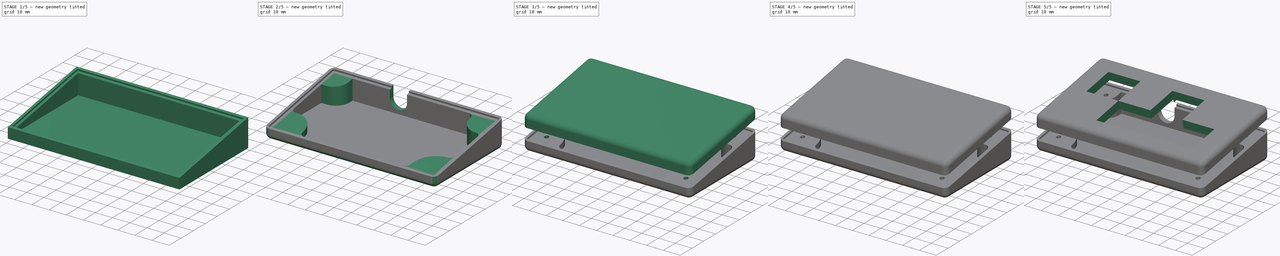
[diagram: build sequence overview — one tinted view per stage of 5, left to right]
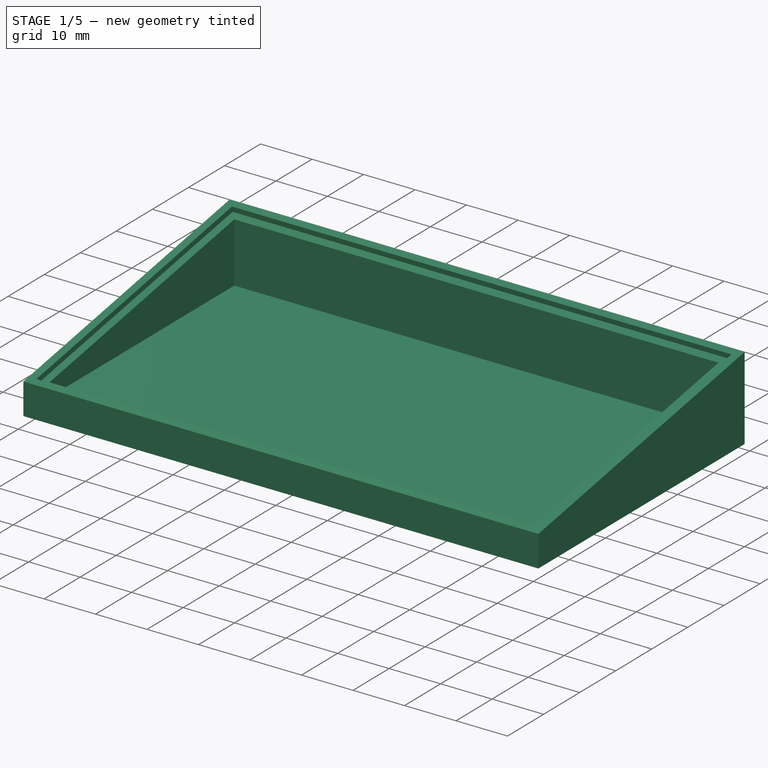
[diagram: stage 1 of 5 — iso view after this stage's code; geometry added in this stage tinted green]
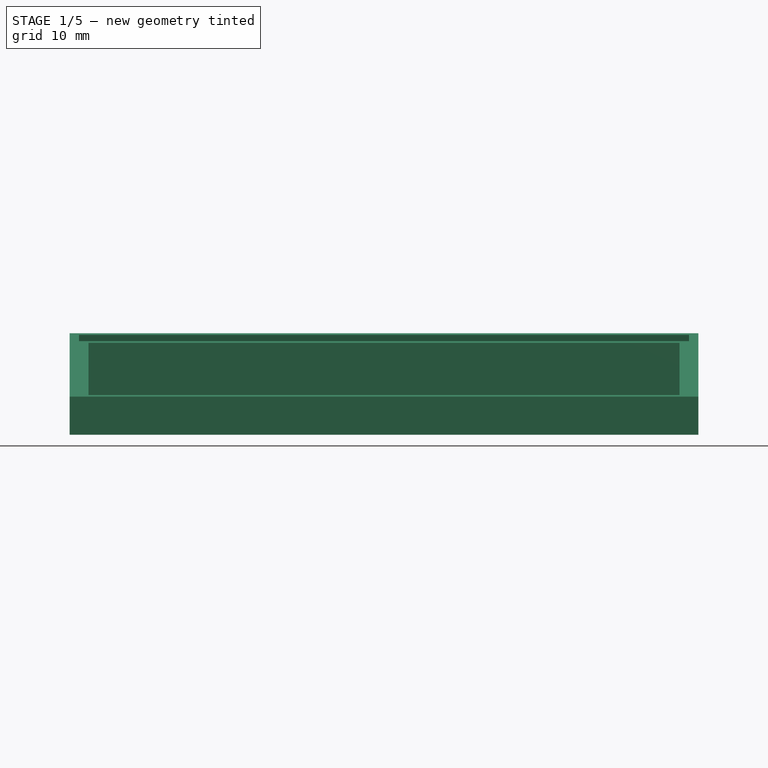
[diagram: stage 1 of 5 — front view after this stage's code; geometry added in this stage tinted green]
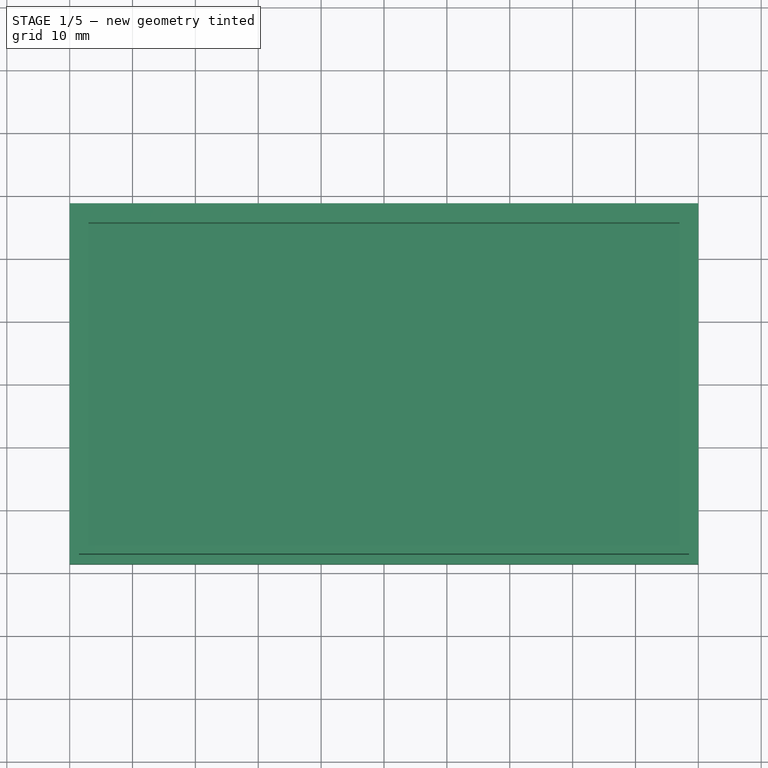
[diagram: stage 1 of 5 — top view after this stage's code; geometry added in this stage tinted green]
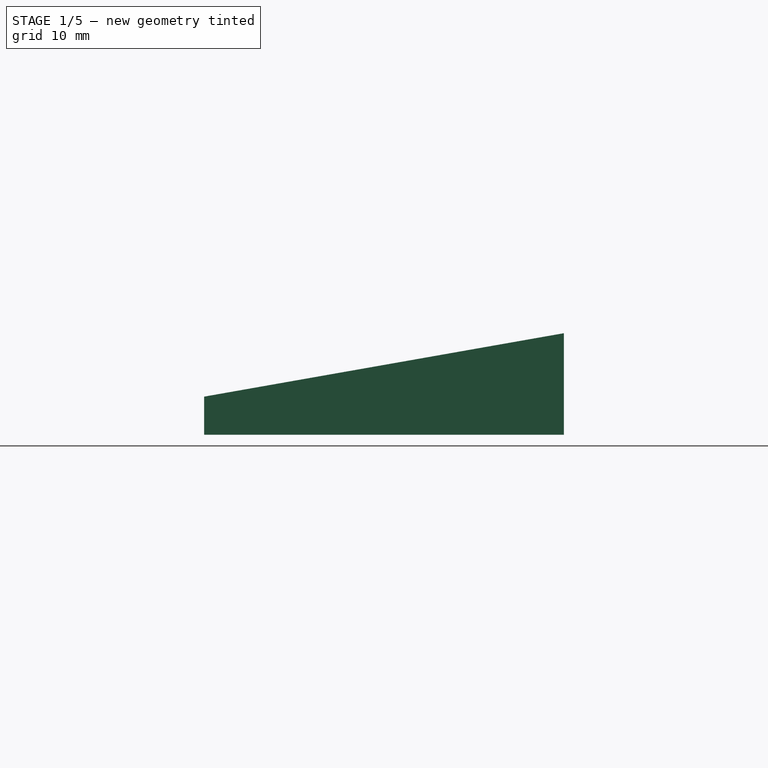
[diagram: stage 1 of 5 — right view after this stage's code; geometry added in this stage tinted green]
FCSTD DOCUMENT  (FreeCAD 0.20R29177 +426 (Git))
Label: JoyKeyMiniCase
License: All rights reserved
LicenseURL: http://en.wikipedia.org/wiki/All_rights_reserved
objects: Sketcher::SketchObject×13, PartDesign::Pocket×8, PartDesign::Plane×7, PartDesign::Pad×5, PartDesign::Line×4, PartDesign::Fillet×2, PartDesign::Body×2, App::Part×2, Spreadsheet::Sheet×1, PartDesign::Thickness×1, PartDesign::Point×1
note: 59 computed .brp shape members not serialized (recipe doc carries the construction recipe); baked Part::Feature solids carry a one-line shape summary decoded from their .brp

FEATURE [Spreadsheet::Sheet] Spreadsheet  label="Params"
  cells = A1=PCB Width; B1(PcbWidth)=93.012; A2=PCB Depth; B2(PcbDepth)=51; A3=Bottom half height; B3(BottomHeight)=5; A4=Wall thickness; B4(WallThickness)=3; A5=Wall offset; B5(WallOffset)=0.5; A6=Screw distance from PCB border; B6(ScrewDistance)=5; A7=Slope; B7(Slope)=10; A8=Above PCB clearance; B8(Clearance)=2; A9=Threaded insert diameter; B9(ThreadedInsertDiameter)=3.2; A10=Threaded insert depth; B10(ThreadedInsertDepth)=4; A11=Screw hole diameter; B11(ScrewHoleDiameter)=2.5; A12=PCB Thickness; B12(PcbThickness)=1.6; A13=Fillet radius; B13(FilletRadius)=3; A14=Feet Diameter; B14(FeetDiameter)=13; A15=Cable Pocket Distance; B15(CablePocketDistance)=36.971
FEATURE [Sketcher::SketchObject] Sketch  label="BottomSketch"
  FullyConstrained = true
  MapMode = 5
  Placement = pos=(0,0,0) rot=(0.57735,0.57735,0.57735;2.0944rad)
  Support = -> [YZ_Plane]
  expr: .Constraints.BoxDepth = (<<Params>>.PcbDepth + <<Params>>.WallOffset * 2) * cos(<<Params>>.Slope)
  expr: .Constraints.FrontHeight = <<Params>>.BottomHeight - <<Params>>.WallThickness + <<Params>>.PcbThickness
  expr: .Constraints.MiddleAlignment = .Constraints.BoxDepth / 2
  expr: .Constraints.Slope = <<Params>>.Slope
  sketch-geometry (4):
    g0: LineSegment StartX=-25.605 StartY=0 StartZ=0 EndX=25.605 EndY=0 EndZ=0
    g1: LineSegment StartX=25.605 StartY=0 StartZ=0 EndX=25.605 EndY=12.6297 EndZ=0
    g2: LineSegment StartX=25.605 StartY=12.6297 StartZ=0 EndX=-25.605 EndY=3.6 EndZ=0
    g3: LineSegment StartX=-25.605 StartY=3.6 StartZ=0 EndX=-25.605 EndY=0 EndZ=0
  constraints (12):
    c: Horizontal(g0)  'BottomHorizontality'
    c: Coincident(g0,g1)
    c: Vertical(g1)  'BackVerticality'
    c: Coincident(g1,g2)
    c: Coincident(g2,g3)
    c: Coincident(g3,g0)
    c: Vertical(g3)  'FrontVerticality'
    c: DistanceX(g0,g0) = 51.21  'BoxDepth'
    c: Angle(g0,g2) = 0.174533  'Slope'
    c: DistanceY(g3,g3) = 3.6  'FrontHeight'
    c: DistanceY(g0,g-1) = 0  'BottomAlignment'
    c: DistanceX(g0,g-1) = 25.605  'MiddleAlignment'
FEATURE [PartDesign::Pad] Pad
  Direction = (1,-2e-16,3e-16)
  Length = 94.012
  Length2 = 10
  Midplane = true
  Placement = pos=(0,0,0) rot=(0.57735,0.57735,0.57735;2.0944rad)
  Profile = -> Sketch
  ReferenceAxis = -> Sketch [N_Axis]
  Type = 0
  expr: Length = <<Params>>.PcbWidth + <<Params>>.WallOffset * 2
FEATURE [PartDesign::Thickness] Thickness  label="BottomThickness"
  Base = -> Pad [Face3]
  BaseFeature = -> Pad
  Intersection = false
  Join = 1
  Mode = 0
  SupportTransform = false
  Value = 3
  expr: Value = <<Params>>.WallThickness
FEATURE [Sketcher::SketchObject] Sketch001  label="FittingHoleSketch"
  ExternalGeometry = -> [Thickness]
  FullyConstrained = true
  MapMode = 5
  Placement = pos=(-3.7e-15,-1.38772,7.87016) rot=(1,0,0;0.174533rad)
  Support = -> [Thickness]
  expr: .Constraints.Depth = <<Params>>.PcbDepth + <<Params>>.WallThickness / cos(<<Params>>.Slope) + <<Params>>.WallOffset * 2
  expr: .Constraints.PositionHalfWallHoriz = <<Params>>.WallThickness / 2
  expr: .Constraints.PositionHalfWallVert = -<<Params>>.WallThickness / cos(<<Params>>.Slope) / 2
  expr: .Constraints.Width = <<Params>>.PcbWidth + <<Params>>.WallThickness + <<Params>>.WallOffset * 2
  sketch-geometry (4):
    g0: LineSegment StartX=-48.506 StartY=-26.114 StartZ=0 EndX=-48.506 EndY=28.9323 EndZ=0
    g1: LineSegment StartX=-48.506 StartY=28.9323 StartZ=0 EndX=48.506 EndY=28.9323 EndZ=0
    g2: LineSegment StartX=48.506 StartY=28.9323 StartZ=0 EndX=48.506 EndY=-26.114 EndZ=0
    g3: LineSegment StartX=48.506 StartY=-26.114 StartZ=0 EndX=-48.506 EndY=-26.114 EndZ=0
  constraints (12):
    c: Coincident(g0,g1)
    c: Coincident(g1,g2)
    c: Coincident(g2,g3)
    c: Coincident(g3,g0)
    c: Horizontal(g1)
    c: Horizontal(g3)
    c: Vertical(g0)
    c: Vertical(g2)
    c: DistanceX(g1,g1) = 97.012  'Width'
    c: DistanceY(g0,g0) = 55.0463  'Depth'
    c: DistanceY(g0,g-3) = -1.52314  'PositionHalfWallVert'
    c: DistanceX(g0,g-4) = 1.5  'PositionHalfWallHoriz'
FEATURE [PartDesign::Pocket] Pocket
  BaseFeature = -> Thickness
  Direction = (5e-16,0.173648,-0.984808)
  Length = 1
  Length2 = 5
  Profile = -> Sketch001
  ReferenceAxis = -> Sketch001 [N_Axis]
  Type = 0
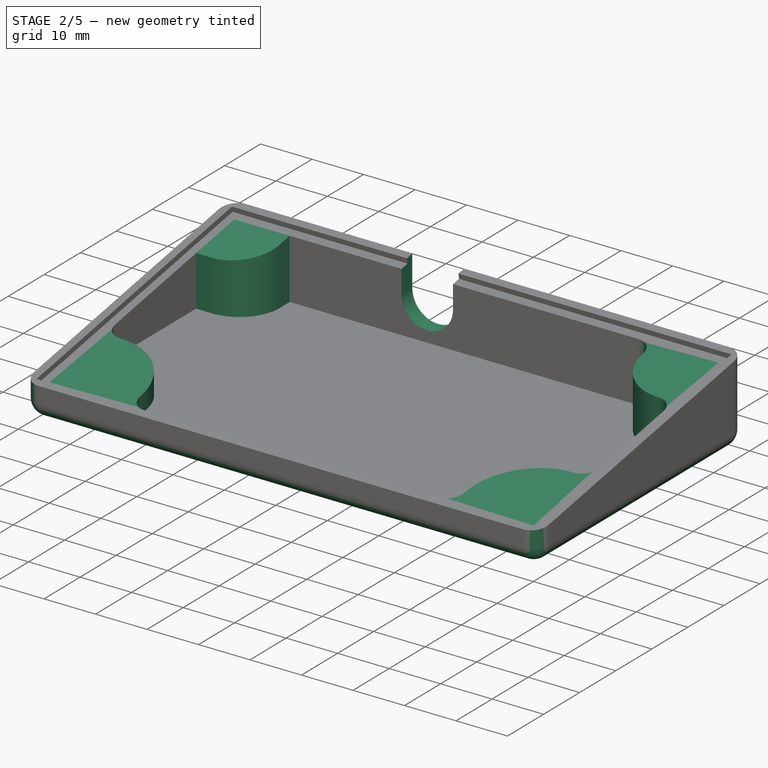
[diagram: stage 2 of 5 — iso view after this stage's code; geometry added in this stage tinted green]
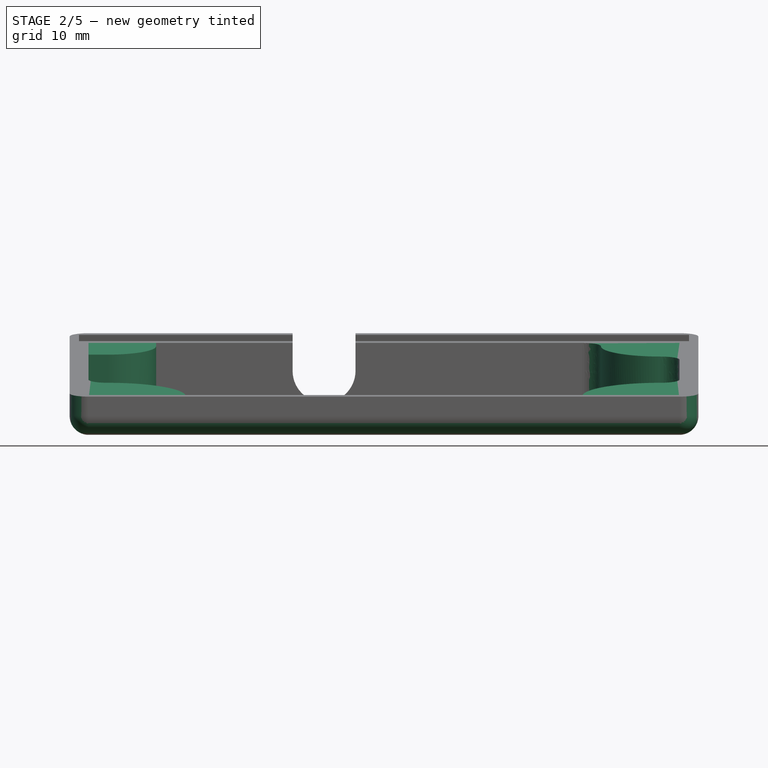
[diagram: stage 2 of 5 — front view after this stage's code; geometry added in this stage tinted green]
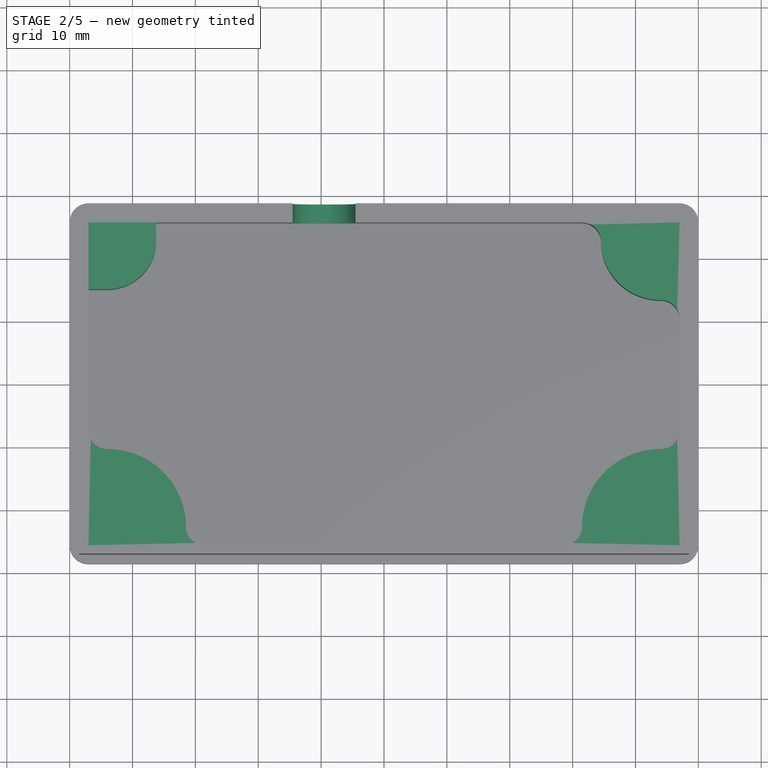
[diagram: stage 2 of 5 — top view after this stage's code; geometry added in this stage tinted green]
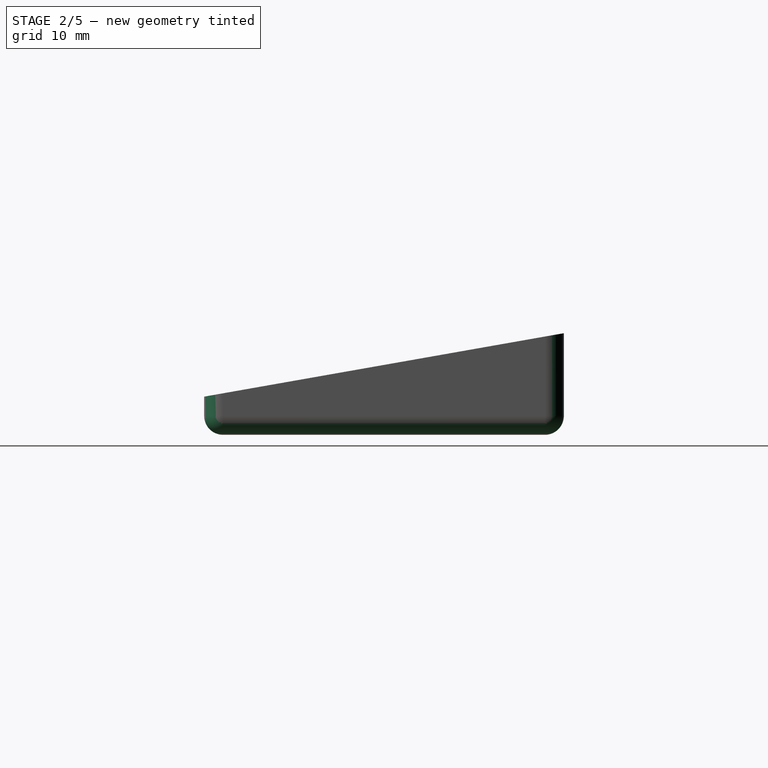
[diagram: stage 2 of 5 — right view after this stage's code; geometry added in this stage tinted green]
FEATURE [PartDesign::Plane] DatumPlane  label="PcbBaseDatumPlane"
  Length = 116.14
  MapMode = 5
  Placement = pos=(-3.2e-15,-1.21407,6.88535) rot=(1,0,0;0.174533rad)
  ResizeMode = 0
  Support = -> [Pocket]
  Width = 81.1516
FEATURE [Sketcher::SketchObject] Sketch009  label="BottomScrewPillarsSketch"
  ExternalGeometry = -> [Pocket]
  FullyConstrained = true
  MapMode = 5
  Placement = pos=(-3.2e-15,-1.21407,6.88535) rot=(1,0,0;0.174533rad)
  Support = -> [DatumPlane]
  expr: Constraints[19] = <<Params>>.ScrewDistance + <<Params>>.ScrewHoleDiameter * 3 + 6
  expr: Constraints[22] = <<Params>>.ScrewDistance + <<Params>>.ScrewHoleDiameter * 3 + 6
  expr: Constraints[36] = <<Params>>.ScrewDistance + <<Params>>.ScrewHoleDiameter * 3 + 6
  expr: Constraints[39] = <<Params>>.ScrewDistance + <<Params>>.ScrewHoleDiameter * 3 + 6
  expr: Constraints[4] = <<Params>>.ScrewDistance + <<Params>>.ScrewHoleDiameter * 3 + 3
  expr: Constraints[58] = <<Params>>.ScrewDistance + <<Params>>.ScrewHoleDiameter * 3 + 3
  expr: Constraints[5] = <<Params>>.ScrewDistance + <<Params>>.ScrewHoleDiameter * 3 + 3
  sketch-geometry (20):
    g0: LineSegment StartX=47.006 StartY=27.2328 StartZ=0 EndX=31.506 EndY=27.2328 EndZ=0
    g1: LineSegment StartX=47.006 StartY=27.2328 StartZ=0 EndX=47.006 EndY=11.7328 EndZ=0
    g2: ArcOfCircle CenterX=31.506 CenterY=24.2328 CenterZ=0 NormalX=0 NormalY=0 NormalZ=1 AngleXU=0 Radius=3 StartAngle=0 EndAngle=1.5708
    g3: ArcOfCircle CenterX=44.006 CenterY=11.7328 CenterZ=0 NormalX=0 NormalY=0 NormalZ=1 AngleXU=0 Radius=3 StartAngle=-1.03393e-11 EndAngle=1.5708
    g4: ArcOfCircle CenterX=44.006 CenterY=24.2328 CenterZ=0 NormalX=0 NormalY=0 NormalZ=1 AngleXU=0 Radius=9.5 StartAngle=3.14159 EndAngle=4.71239
    g5: LineSegment StartX=-47.006 StartY=-24.7672 StartZ=0 EndX=-47.006 EndY=-6.2672 EndZ=0
    g6: LineSegment StartX=-47.006 StartY=-24.7672 StartZ=0 EndX=-28.506 EndY=-24.7672 EndZ=0
    g7: ArcOfCircle CenterX=-44.006 CenterY=-6.2672 CenterZ=0 NormalX=0 NormalY=0 NormalZ=1 AngleXU=0 Radius=3 StartAngle=3.14159 EndAngle=4.71239
    g8: ArcOfCircle CenterX=-28.506 CenterY=-21.7672 CenterZ=0 NormalX=0 NormalY=0 NormalZ=1 AngleXU=0 Radius=3 StartAngle=3.14159 EndAngle=4.71239
    g9: ArcOfCircle CenterX=-44.006 CenterY=-21.7672 CenterZ=0 NormalX=0 NormalY=0 NormalZ=1 AngleXU=0 Radius=12.5 StartAngle=-9e-16 EndAngle=1.5708
    g10: LineSegment StartX=47.006 StartY=-24.7672 StartZ=0 EndX=28.506 EndY=-24.7672 EndZ=0
    g11: LineSegment StartX=47.006 StartY=-24.7672 StartZ=0 EndX=47.006 EndY=-6.2672 EndZ=0
    g12: ArcOfCircle CenterX=28.506 CenterY=-21.7672 CenterZ=0 NormalX=0 NormalY=0 NormalZ=1 AngleXU=0 Radius=3 StartAngle=4.71239 EndAngle=6.28319
    g13: ArcOfCircle CenterX=44.006 CenterY=-6.2672 CenterZ=0 NormalX=0 NormalY=0 NormalZ=1 AngleXU=0 Radius=3 StartAngle=4.71239 EndAngle=6.28319
    g14: ArcOfCircle CenterX=44.006 CenterY=-21.7672 CenterZ=0 NormalX=0 NormalY=0 NormalZ=1 AngleXU=0 Radius=12.5 StartAngle=1.5708 EndAngle=3.14159
    g15: LineSegment StartX=-47.006 StartY=27.2328 StartZ=0 EndX=-36.256 EndY=27.2328 EndZ=0
    g16: LineSegment StartX=-36.256 StartY=27.2328 StartZ=0 EndX=-36.256 EndY=24.2328 EndZ=0
    g17: ArcOfCircle CenterX=-44.006 CenterY=24.2328 CenterZ=0 NormalX=0 NormalY=0 NormalZ=1 AngleXU=0 Radius=7.75 StartAngle=4.71239 EndAngle=6.28319
    g18: LineSegment StartX=-47.006 StartY=16.4828 StartZ=0 EndX=-47.006 EndY=27.2328 EndZ=0
    g19: LineSegment StartX=-47.006 StartY=16.4828 StartZ=0 EndX=-44.006 EndY=16.4828 EndZ=0
  constraints (64):
    c: Coincident(g0,g-4)
    c: PointOnObject(g0,g-4)
    c: Coincident(g1,g0)
    c: Vertical(g1)
    c: DistanceY(g1,g1) = 15.5
    c: DistanceX(g0,g0) = 15.5
    c: Coincident(g2,g0)
    c: Horizontal(g2,g2)
    c: Vertical(g2,g0)
    c: Radius(g2) = 3
    c: Coincident(g3,g1)
    c: Vertical(g3,g3)
    c: Radius(g3) = 3
    c: Coincident(g4,g2)
    c: Coincident(g4,g3)
    c: Horizontal(g2,g4)
    c: Vertical(g4,g3)
    c: Coincident(g5,g-5)
    c: PointOnObject(g5,g-3)
    c: DistanceY(g5,g5) = 18.5
    c: Coincident(g6,g5)
    c: PointOnObject(g6,g-5)
    c: DistanceX(g6,g6) = 18.5
    c: Coincident(g7,g5)
    c: Vertical(g7,g7)
    c: Horizontal(g7,g5)
    c: Radius(g7) = 3
    c: Coincident(g8,g6)
    c: Horizontal(g8,g8)
    c: Vertical(g8,g6)
    c: Radius(g8) = 3
    c: Coincident(g9,g8)
    c: Coincident(g9,g7)
    c: Vertical(g9,g7)
    c: Coincident(g10,g-5)
    c: PointOnObject(g10,g-5)
    c: DistanceX(g10,g10) = 18.5
    c: Coincident(g11,g10)
    c: Vertical(g11)
    c: DistanceY(g11,g11) = 18.5
    c: Coincident(g12,g10)
    c: Horizontal(g12,g12)
    c: Vertical(g12,g10)
    c: Radius(g12) = 3
    c: Coincident(g13,g11)
    c: Vertical(g13,g13)
    c: Horizontal(g13,g11)
    c: Radius(g13) = 3
    c: Coincident(g14,g12)
    c: Coincident(g14,g13)
    c: Horizontal(g14,g12)
    c: Coincident(g-4,g15)
    c: Horizontal(g15)
    c: Coincident(g15,g16)
    c: Vertical(g16)
    c: Tangent(g16,g17) = 1.5708
    c: PointOnObject(g18,g-3)
    c: Coincident(g18,g15)
    c: Diameter(g17) = 15.5
    c: Equal(g18,g15)
    c: DistanceY(g16,g16) = 3
    c: Coincident(g19,g18)
    c: Horizontal(g19)
    c: Tangent(g19,g17) = -1.5708
FEATURE [PartDesign::Pad] Pad007  label="BottomScrewPillars"
  BaseFeature = -> Pocket
  Direction = (-6e-16,3e-16,1)
  Length = 10
  Length2 = 10
  Profile = -> Sketch009
  ReferenceAxis = -> Pocket [Edge8]
  Type = 3
  UpToFace = -> Pocket [Face1]
FEATURE [Sketcher::SketchObject] Sketch010  label="TopHolesSketch"
  ExternalGeometry = -> [Pocket001]
  FullyConstrained = true
  MapMode = 5
  Placement = pos=(-2.42e-14,-3.76972,21.3791) rot=(0.086827,0.086827,-0.992433;1.57839rad)
  Support = -> [Pocket001]
  expr: Constraints[19] = .Constraints.OneU * 3
  expr: Constraints[20] = .Constraints.OneU
  expr: Constraints[21] = .Constraints.OneU
  expr: Constraints[22] = 17.931 + 19.05 - <<Params>>.FilletRadius - 19.05 / 2 + <<Params>>.WallThickness + <<Params>>.WallOffset
  expr: Constraints[23] = 15.975 + 3 * 19.05 / 2 - <<Params>>.FilletRadius + <<Params>>.WallThickness + <<Params>>.WallOffset + (<<Params>>.Clearance + <<Params>>.WallThickness) * sin(<<Params>>.Slope)
  expr: Constraints[31] = .Constraints.OneU
  expr: Constraints[34] = 17.931 - 19.05 / 2 - 0.01 - <<Params>>.FilletRadius + <<Params>>.WallThickness + <<Params>>.WallOffset
  sketch-geometry (12):
    g0: LineSegment StartX=-21.4806 StartY=7.1e-15 StartZ=0 EndX=-21.4806 EndY=19.05 EndZ=0
    g1: LineSegment StartX=-21.4806 StartY=19.05 StartZ=0 EndX=-2.43065 EndY=19.05 EndZ=0
    g2: LineSegment StartX=-2.43065 StartY=19.05 StartZ=0 EndX=-2.43065 EndY=38.1 EndZ=0
    g3: LineSegment StartX=-2.43065 StartY=38.1 StartZ=0 EndX=16.6194 EndY=38.1 EndZ=0
    g4: LineSegment StartX=16.6194 StartY=38.1 StartZ=0 EndX=16.6194 EndY=-19.05 EndZ=0
    g5: LineSegment StartX=16.6194 StartY=-19.05 StartZ=0 EndX=-2.43065 EndY=-19.05 EndZ=0
    g6: LineSegment StartX=-2.43065 StartY=-19.05 StartZ=0 EndX=-2.43065 EndY=7.1e-15 EndZ=0
    g7: LineSegment StartX=-2.43065 StartY=7.1e-15 StartZ=0 EndX=-21.4806 EndY=7.1e-15 EndZ=0
    g8: LineSegment StartX=-2.43065 StartY=-38.11 StartZ=0 EndX=-2.43065 EndY=-19.06 EndZ=0
    g9: LineSegment StartX=-2.43065 StartY=-19.06 StartZ=0 EndX=-21.4806 EndY=-19.06 EndZ=0
    g10: LineSegment StartX=-21.4806 StartY=-19.06 StartZ=0 EndX=-21.4806 EndY=-38.11 EndZ=0
    g11: LineSegment StartX=-21.4806 StartY=-38.11 StartZ=0 EndX=-2.43065 EndY=-38.11 EndZ=0
  constraints (36):
    c: Vertical(g0)
    c: Coincident(g0,g1)
    c: Horizontal(g1)
    c: Coincident(g1,g2)
    c: Vertical(g2)
    c: Coincident(g2,g3)
    c: Horizontal(g3)
    c: Coincident(g3,g4)
    c: Vertical(g4)
    c: Coincident(g4,g5)
    c: Horizontal(g5)
    c: Coincident(g5,g6)
    c: Vertical(g6)
    c: Coincident(g6,g7)
    c: Coincident(g7,g0)
    c: Horizontal(g7)
    c: Equal(g7,g1)
    c: Equal(g6,g2)
    c: DistanceY(g0,g0) = 19.05  'OneU'
    c: DistanceY(g4,g4) = 57.15
    c: DistanceX(g7,g7) = 19.05
    c: DistanceX(g3,g3) = 19.05
    c: DistanceY(g-3,g4) = 27.956
    c: DistanceX(g-4,g4) = 45.9182
    c: Vertical(g8)
    c: Coincident(g8,g9)
    c: Horizontal(g9)
    c: Coincident(g9,g10)
    c: Vertical(g10)
    c: Coincident(g10,g11)
    c: Horizontal(g11)
    c: DistanceX(g11,g11) = 19.05
    c: Equal(g10,g11)
    c: DistanceX(g5,g8) = 0
    c: DistanceY(g-3,g10) = 8.896
    c: Coincident(g8,g11)
FEATURE [PartDesign::Fillet] Fillet001  label="BottomFillet"
  Base = -> Pad007 [Edge77,Edge73,Edge74,Edge79,Edge78,Edge75,Edge80,Edge76]
  BaseFeature = -> Pad007
  Radius = 3
  SupportTransform = false
  UseAllEdges = false
  expr: Radius = <<Params>>.FilletRadius
FEATURE [Sketcher::SketchObject] Sketch017  label="CableHoleSketch"
  ExternalGeometry = -> [Fillet001]
  FullyConstrained = true
  MapMode = 5
  Placement = pos=(1.27e-14,28.605,-9.5e-15) rot=(0,0.707107,0.707107;3.14159rad)
  Support = -> [Fillet001]
  expr: Constraints[9] = <<Params>>.CablePocketDistance + <<Params>>.WallThickness + <<Params>>.WallOffset - <<Params>>.FilletRadius - 5
  sketch-geometry (4):
    g0: LineSegment StartX=4.535 StartY=13.1587 StartZ=0 EndX=4.535 EndY=7.15869 EndZ=0
    g1: ArcOfCircle CenterX=9.535 CenterY=7.15869 CenterZ=0 NormalX=0 NormalY=0 NormalZ=1 AngleXU=0 Radius=5 StartAngle=3.14159 EndAngle=6.28319
    g2: LineSegment StartX=14.535 StartY=7.15869 StartZ=0 EndX=14.535 EndY=13.1587 EndZ=0
    g3: LineSegment StartX=4.535 StartY=13.1587 StartZ=0 EndX=14.535 EndY=13.1587 EndZ=0
  constraints (12):
    c: PointOnObject(g0,g-3)
    c: Vertical(g0)
    c: Tangent(g0,g1) = -1.5708
    c: Coincident(g1,g2)
    c: PointOnObject(g2,g-3)
    c: Vertical(g2)
    c: DistanceX(g0,g2) = 10
    c: DistanceY(g2,g2) = 6
    c: Equal(g2,g0)
    c: DistanceX(g2,g-3) = 32.471
    c: Coincident(g3,g0)
    c: Coincident(g3,g2)
FEATURE [PartDesign::Pocket] Pocket008  label="CableHole"
  BaseFeature = -> Fillet001
  Direction = (-4e-16,-1,2e-16)
  Length = 3
  Length2 = 5
  Profile = -> Sketch017
  ReferenceAxis = -> Sketch017 [N_Axis]
  Type = 0
  expr: Length = <<Params>>.WallThickness
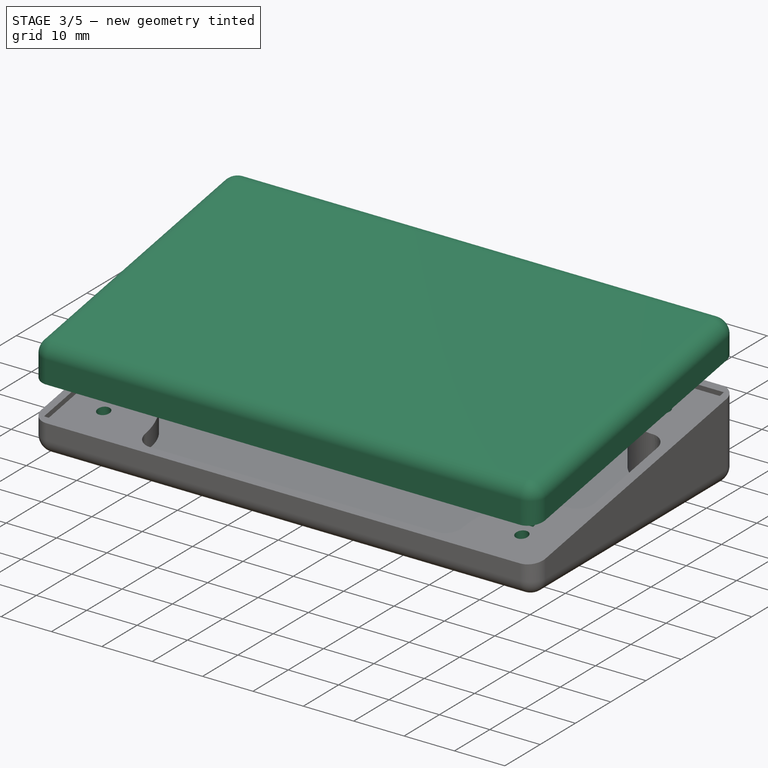
[diagram: stage 3 of 5 — iso view after this stage's code; geometry added in this stage tinted green]
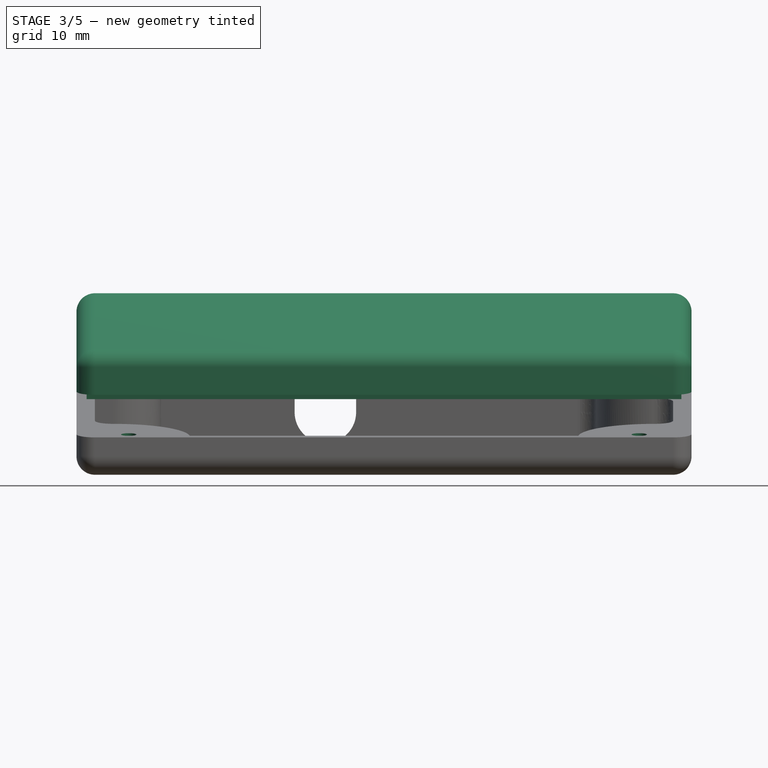
[diagram: stage 3 of 5 — front view after this stage's code; geometry added in this stage tinted green]
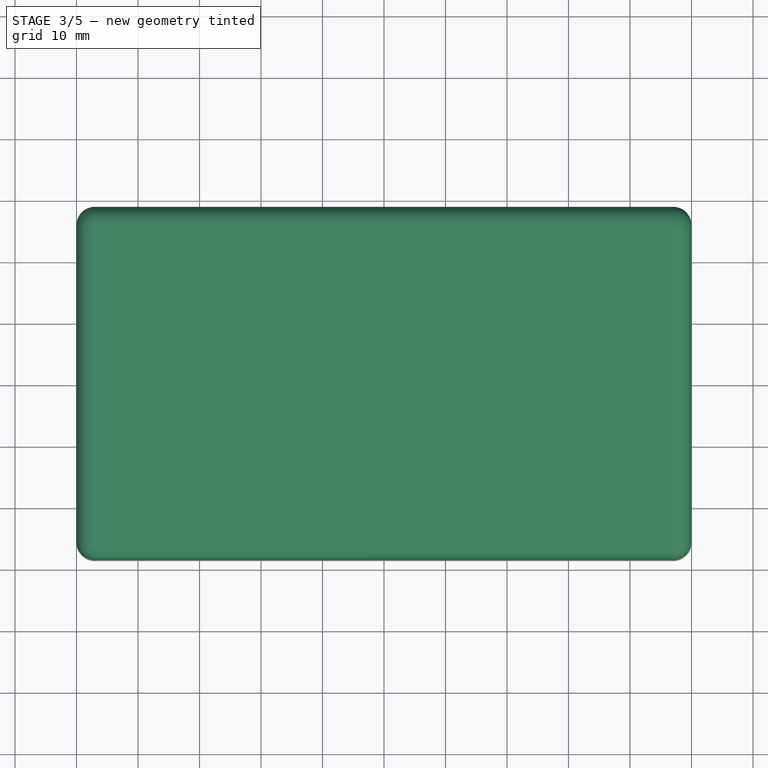
[diagram: stage 3 of 5 — top view after this stage's code; geometry added in this stage tinted green]
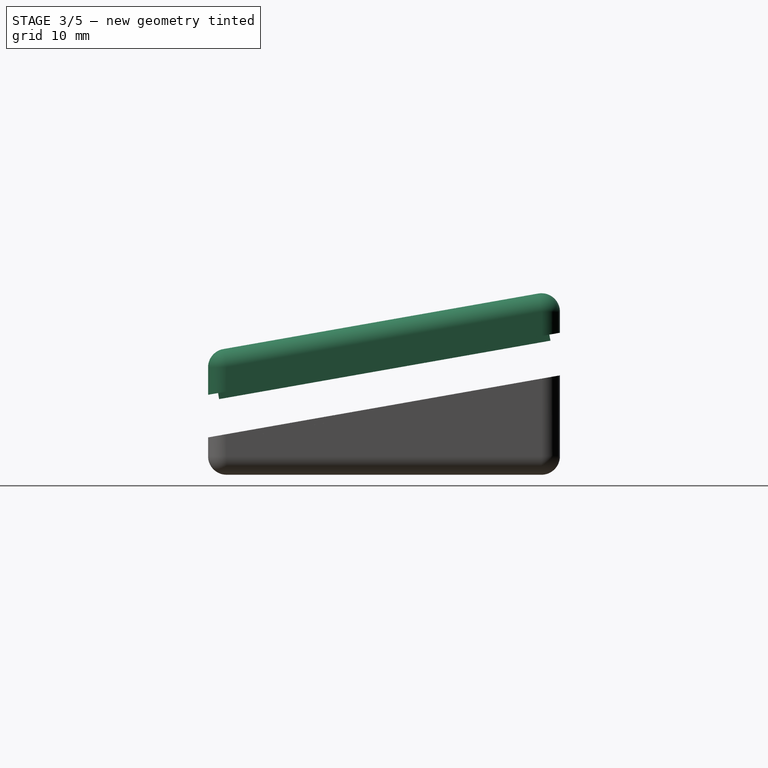
[diagram: stage 3 of 5 — right view after this stage's code; geometry added in this stage tinted green]
FEATURE [Sketcher::SketchObject] Sketch006  label="LidSketch"
  FullyConstrained = true
  MapMode = 5
  Placement = pos=(0,0,0) rot=(0.57735,0.57735,0.57735;2.0944rad)
  Support = -> [YZ_Plane003]
  expr: .Constraints.Depth = (<<Params>>.PcbDepth + 2 * <<Params>>.WallOffset) * cos(<<Params>>.Slope) + 2 * <<Params>>.WallThickness
  expr: Constraints[10] = <<Params>>.BottomHeight * 2
  expr: Constraints[6] = <<Params>>.Slope
  expr: Constraints[7] = <<Params>>.Clearance + max(<<Params>>.WallThickness; <<Params>>.ThreadedInsertDepth + 1)
  expr: Constraints[9] = .Constraints.Depth / 2
  sketch-geometry (4):
    g0: LineSegment StartX=-28.605 StartY=10 StartZ=0 EndX=-28.605 EndY=17 EndZ=0
    g1: LineSegment StartX=-28.605 StartY=17 StartZ=0 EndX=28.605 EndY=27.0877 EndZ=0
    g2: LineSegment StartX=28.605 StartY=27.0877 StartZ=0 EndX=28.605 EndY=20.0877 EndZ=0
    g3: LineSegment StartX=28.605 StartY=20.0877 StartZ=0 EndX=-28.605 EndY=10 EndZ=0
  constraints (12):
    c: Vertical(g0)
    c: Coincident(g0,g1)
    c: Coincident(g1,g2)
    c: Coincident(g2,g3)
    c: Coincident(g3,g0)
    c: Parallel(g1,g3)
    c: Angle(g-1,g3) = 0.174533
    c: DistanceY(g0,g0) = 7
    c: DistanceX(g1,g1) = 57.21  'Depth'
    c: DistanceX(g0,g-1) = 28.605
    c: DistanceY(g-1,g0) = 10
    c: Vertical(g2)
FEATURE [PartDesign::Pad] Pad005  label="Lid"
  Direction = (1,-2e-16,3e-16)
  Length = 100.012
  Length2 = 10
  Midplane = true
  Placement = pos=(0,0,0) rot=(0.57735,0.57735,0.57735;2.0944rad)
  Profile = -> Sketch006
  ReferenceAxis = -> Sketch006 [N_Axis]
  Type = 0
  expr: Length = <<Params>>.PcbWidth + 2 * <<Params>>.WallThickness + 2 * <<Params>>.WallOffset
FEATURE [PartDesign::Fillet] Fillet
  Base = -> Pad005 [Edge2,Edge3,Edge4,Edge5,Edge6,Edge7,Edge9,Edge10]
  BaseFeature = -> Pad005
  Placement = pos=(0,0,0) rot=(0.57735,0.57735,0.57735;2.0944rad)
  Radius = 3
  SupportTransform = false
  UseAllEdges = false
  expr: Radius = <<Params>>.FilletRadius
FEATURE [Sketcher::SketchObject] Sketch007  label="TopLipSketch"
  ExternalGeometry = -> [Fillet]
  FullyConstrained = true
  MapMode = 5
  Placement = pos=(-6.8e-15,-2.57265,14.5902) rot=(0.705758,0.705758,0.061746;3.26493rad)
  Support = -> [Fillet]
  expr: Constraints[10] = <<Params>>.PcbDepth + <<Params>>.WallThickness * (1 + 0.9 * 0.5) + <<Params>>.WallOffset * 2
  expr: Constraints[11] = <<Params>>.PcbWidth + <<Params>>.WallThickness * (1 + 0.9 * 0.5) + <<Params>>.WallOffset * 2
  expr: Constraints[8] = <<Params>>.PcbDepth + <<Params>>.WallThickness * 0.9 + <<Params>>.WallOffset * 2
  expr: Constraints[9] = <<Params>>.PcbWidth + <<Params>>.WallOffset * 2 + <<Params>>.WallThickness * 0.9
  sketch-geometry (4):
    g0: LineSegment StartX=-24.7839 StartY=48.356 StartZ=0 EndX=29.9161 EndY=48.356 EndZ=0
    g1: LineSegment StartX=29.9161 StartY=48.356 StartZ=0 EndX=29.9161 EndY=-48.356 EndZ=0
    g2: LineSegment StartX=29.9161 StartY=-48.356 StartZ=0 EndX=-24.7839 EndY=-48.356 EndZ=0
    g3: LineSegment StartX=-24.7839 StartY=-48.356 StartZ=0 EndX=-24.7839 EndY=48.356 EndZ=0
  constraints (12):
    c: Coincident(g0,g1)
    c: Coincident(g1,g2)
    c: Coincident(g2,g3)
    c: Coincident(g3,g0)
    c: Horizontal(g0)
    c: Horizontal(g2)
    c: Vertical(g1)
    c: Vertical(g3)
    c: DistanceX(g0,g0) = 54.7
    c: DistanceY(g1,g1) = 96.712
    c: DistanceX(g-4,g0) = 56.35
    c: DistanceY(g2,g-3) = 98.362
FEATURE [PartDesign::Pad] Pad006  label="TopLip"
  BaseFeature = -> Fillet
  Direction = (4e-16,0.173648,-0.984808)
  Length = 1
  Length2 = 10
  Placement = pos=(0,0,0) rot=(0.57735,0.57735,0.57735;2.0944rad)
  Profile = -> Sketch007
  ReferenceAxis = -> Sketch007 [N_Axis]
  Type = 0
FEATURE [PartDesign::Body] Body001  label="TopBody"
  Group = -> [Sketch006,Pad005,DatumPlane001,DatumPoint,DatumPlane004,Fillet,Sketch007,Pad006,Sketch008,DatumPlane003,Pocket001,Sketch010,DatumPlane002,DatumLine,DatumLine001,Pocket002,Sketch015,Pocket006,Sketch018,Pad009]
  Origin = -> Origin003
  Tip = -> Pad009
FEATURE [App::Part] Part001  label="Top"
  Group = -> [Body001]
  Origin = -> Origin002
FEATURE [PartDesign::Line] DatumLine002  label="TopOfLeftWall"
  AttacherType = Attacher::AttachEngineLine
  Length = 20
  MapMode = 29
  Placement = pos=(-47.006,-1.21407,6.88535) rot=(1,0,0;1.74533rad)
  ResizeMode = 0
  Support = -> [Pocket]
FEATURE [PartDesign::Line] DatumLine003  label="TopOfBackWall"
  AttacherType = Attacher::AttachEngineLine
  Length = 20
  MapMode = 29
  Placement = pos=(7.1e-15,25.605,11.6143) rot=(-0.57735,0.57735,0.57735;4.18879rad)
  ResizeMode = 0
  Support = -> [Pocket]
FEATURE [Sketcher::SketchObject] Sketch019  label="ScrewHoleSketch"
  ExternalGeometry = -> [DatumLine002,DatumLine003]
  FullyConstrained = true
  MapMode = 5
  Placement = pos=(-3.2e-15,-1.21407,6.88535) rot=(1,0,0;0.174533rad)
  Support = -> [DatumPlane]
  expr: .Constraints.ScrewDist = <<Params>>.ScrewDistance + <<Params>>.WallOffset
  expr: Constraints[0] = <<Params>>.ScrewHoleDiameter
  expr: Constraints[1] = <<Params>>.ScrewHoleDiameter
  expr: Constraints[2] = <<Params>>.ScrewHoleDiameter
  expr: Constraints[3] = <<Params>>.ScrewHoleDiameter
  expr: Constraints[5] = .Constraints.ScrewDist
  expr: Constraints[6] = <<Params>>.PcbDepth - 2 * <<Params>>.ScrewDistance
  expr: Constraints[7] = <<Params>>.PcbWidth - 2 * <<Params>>.ScrewDistance
  sketch-geometry (5):
    g0: Circle CenterX=-41.506 CenterY=-19.2672 CenterZ=0 NormalX=0 NormalY=0 NormalZ=1 AngleXU=0 Radius=1.25
    g1: Circle CenterX=41.506 CenterY=-19.2672 CenterZ=0 NormalX=0 NormalY=0 NormalZ=1 AngleXU=0 Radius=1.25
    g2: Circle CenterX=41.506 CenterY=21.7328 CenterZ=0 NormalX=0 NormalY=0 NormalZ=1 AngleXU=0 Radius=1.25
    g3: Circle CenterX=-41.506 CenterY=21.7328 CenterZ=0 NormalX=0 NormalY=0 NormalZ=1 AngleXU=0 Radius=1.25
    g4: GeomPoint X=-47.006 Y=27.2328 Z=0
  constraints (14):
    c: Diameter(g0) = 2.5
    c: Diameter(g1) = 2.5
    c: Diameter(g2) = 2.5
    c: Diameter(g3) = 2.5
    c: DistanceX(g4,g3) = 5.5  'ScrewDist'
    c: DistanceY(g3,g4) = 5.5
    c: DistanceY(g0,g3) = 41
    c: DistanceX(g3,g2) = 83.012
    c: Vertical(g3,g0)
    c: Vertical(g2,g1)
    c: Horizontal(g0,g1)
    c: Horizontal(g2,g3)
    c: PointOnObject(g4,g-4)
    c: PointOnObject(g4,g-3)
FEATURE [PartDesign::Pocket] Pocket009  label="ScrewHole"
  BaseFeature = -> Pocket008
  Direction = (5e-16,0.173648,-0.984808)
  Length = 3
  Length2 = 5
  Profile = -> Sketch019
  ReferenceAxis = -> Sketch019 [N_Axis]
  Type = 0
  expr: Length = <<Params>>.WallThickness
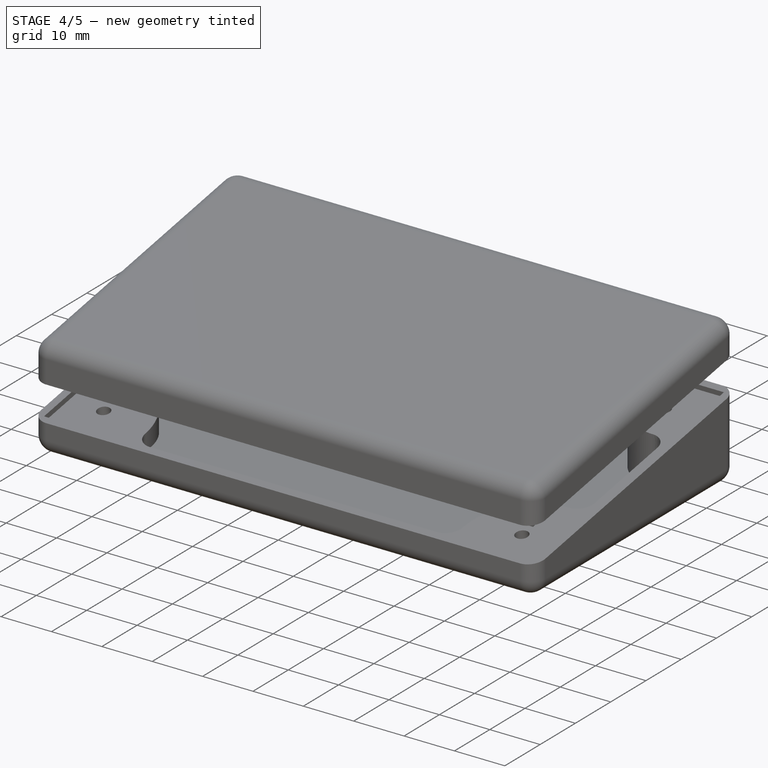
[diagram: stage 4 of 5 — iso view after this stage's code; geometry added in this stage tinted green]
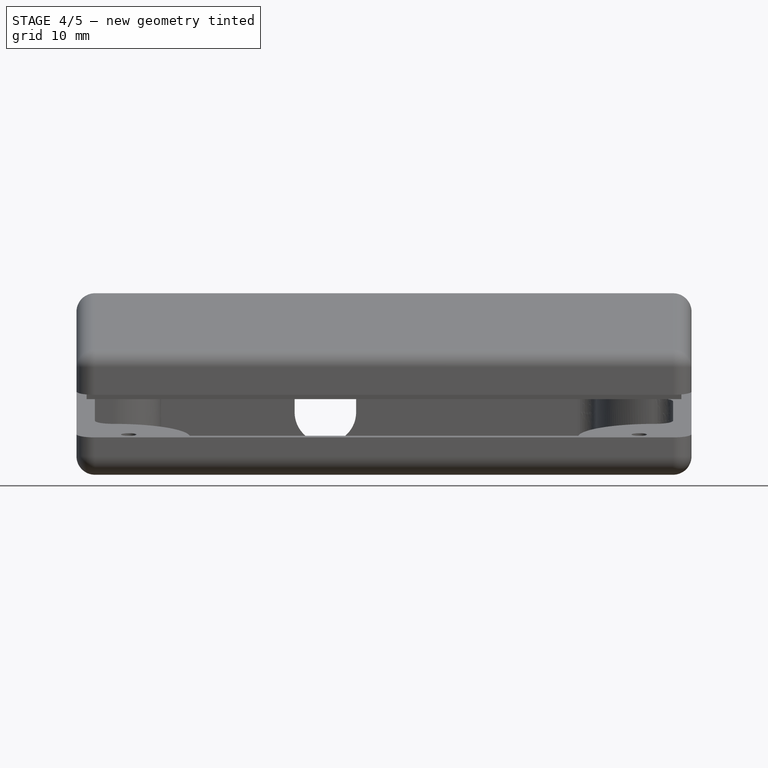
[diagram: stage 4 of 5 — front view after this stage's code; geometry added in this stage tinted green]
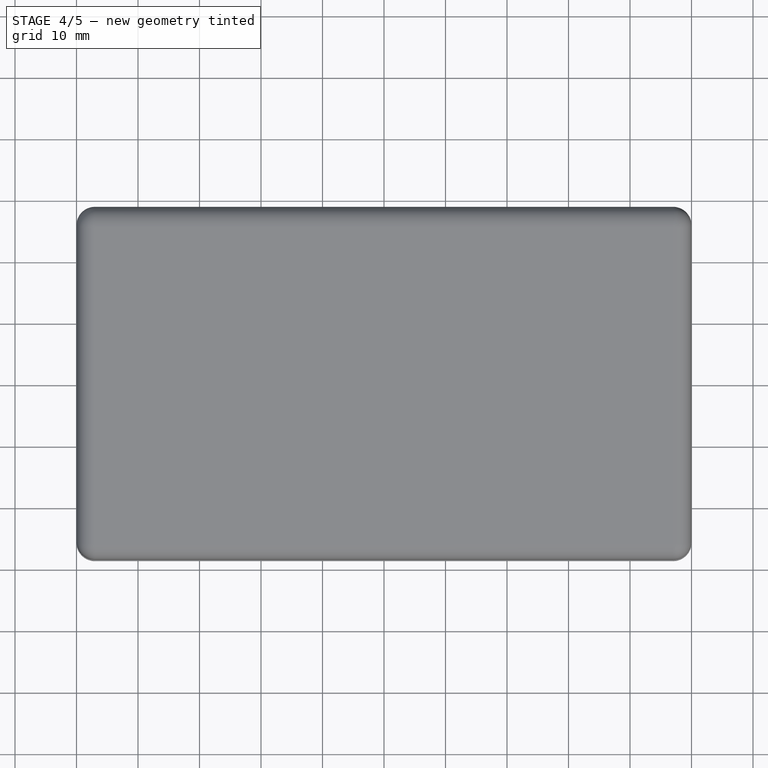
[diagram: stage 4 of 5 — top view after this stage's code; geometry added in this stage tinted green]
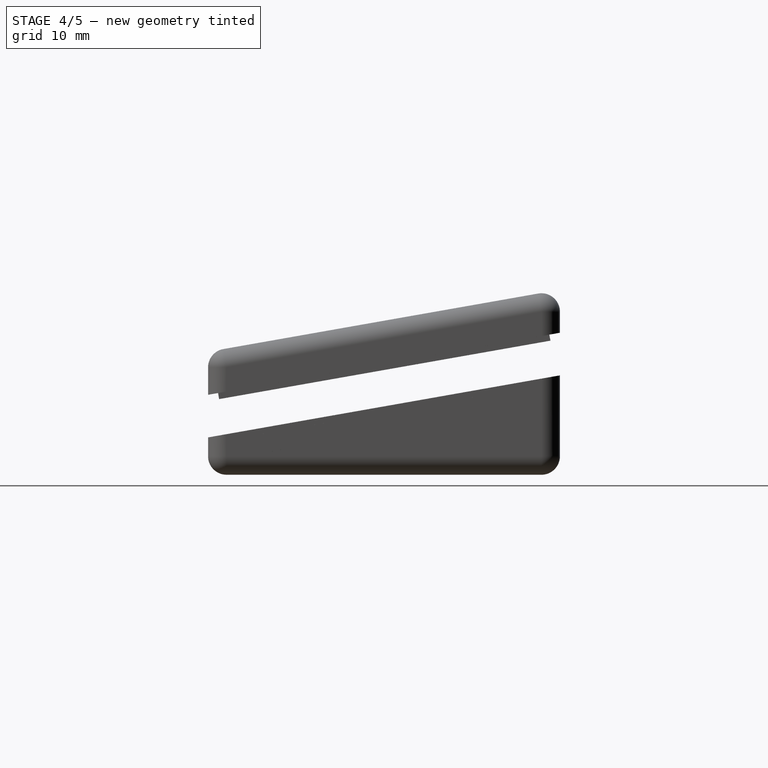
[diagram: stage 4 of 5 — right view after this stage's code; geometry added in this stage tinted green]
FEATURE [Sketcher::SketchObject] Sketch008  label="ClearanceSketch"
  ExternalGeometry = -> [Pad006]
  FullyConstrained = true
  MapMode = 5
  Placement = pos=(-1.11e-14,-2.399,13.6054) rot=(0.705758,0.705758,0.061746;3.26493rad)
  Support = -> [Pad006]
  expr: Constraints[10] = <<Params>>.WallThickness
  expr: Constraints[11] = <<Params>>.WallThickness
  expr: Constraints[8] = <<Params>>.PcbDepth + <<Params>>.WallOffset * 2
  expr: Constraints[9] = <<Params>>.PcbWidth + <<Params>>.WallOffset * 2
  sketch-geometry (4):
    g0: LineSegment StartX=-23.4339 StartY=47.006 StartZ=0 EndX=28.5661 EndY=47.006 EndZ=0
    g1: LineSegment StartX=28.5661 StartY=47.006 StartZ=0 EndX=28.5661 EndY=-47.006 EndZ=0
    g2: LineSegment StartX=28.5661 StartY=-47.006 StartZ=0 EndX=-23.4339 EndY=-47.006 EndZ=0
    g3: LineSegment StartX=-23.4339 StartY=-47.006 StartZ=0 EndX=-23.4339 EndY=47.006 EndZ=0
  constraints (12):
    c: Coincident(g0,g1)
    c: Coincident(g1,g2)
    c: Coincident(g2,g3)
    c: Coincident(g3,g0)
    c: Horizontal(g0)
    c: Horizontal(g2)
    c: Vertical(g1)
    c: Vertical(g3)
    c: DistanceX(g0,g0) = 52
    c: DistanceY(g1,g1) = 94.012
    c: DistanceY(g0,g-3) = 3
    c: DistanceX(g-4,g0) = 3
FEATURE [PartDesign::Pocket] Pocket001  label="ClearancePocket"
  BaseFeature = -> Pad006
  Direction = (-8e-16,-0.173648,0.984808)
  Length = 3
  Length2 = 5
  Placement = pos=(0,0,0) rot=(0.57735,0.57735,0.57735;2.0944rad)
  Profile = -> Sketch008
  ReferenceAxis = -> Sketch008 [N_Axis]
  Type = 0
  expr: Length = <<Params>>.Clearance + 1
FEATURE [PartDesign::Plane] DatumPlane005  label="BottomOfScrewHolePlane"
  Length = 116.14
  MapMode = 5
  Placement = pos=(-1.8e-15,-0.693129,3.93093) rot=(1,0,0;0.174533rad)
  ResizeMode = 0
  Support = -> [Pocket009]
  Width = 81.1516
FEATURE [Sketcher::SketchObject] Sketch020  label="ScrewAccessHoleSketch"
  ExternalGeometry = -> [Pocket009]
  FullyConstrained = true
  MapMode = 5
  Placement = pos=(-1.8e-15,-0.693129,3.93093) rot=(1,0,0;0.174533rad)
  Support = -> [DatumPlane005]
  expr: .Constraints.Diam = <<Params>>.ScrewHoleDiameter * 3
  expr: Constraints[1] = .Constraints.Diam
  expr: Constraints[2] = .Constraints.Diam
  expr: Constraints[3] = .Constraints.Diam
  sketch-geometry (4):
    g0: Circle CenterX=-41.506 CenterY=-19.2672 CenterZ=0 NormalX=0 NormalY=0 NormalZ=1 AngleXU=0 Radius=3.75
    g1: Circle CenterX=41.506 CenterY=-19.2672 CenterZ=0 NormalX=0 NormalY=0 NormalZ=1 AngleXU=0 Radius=3.75
    g2: Circle CenterX=-41.506 CenterY=21.7328 CenterZ=0 NormalX=0 NormalY=0 NormalZ=1 AngleXU=0 Radius=3.75
    g3: Circle CenterX=41.506 CenterY=21.7328 CenterZ=0 NormalX=0 NormalY=0 NormalZ=1 AngleXU=0 Radius=3.75
  constraints (8):
    c: Diameter(g0) = 7.5  'Diam'
    c: Diameter(g1) = 7.5
    c: Diameter(g2) = 7.5
    c: Diameter(g3) = 7.5
    c: Coincident(g2,g-3)
    c: Coincident(g3,g-4)
    c: Coincident(g1,g-5)
    c: Coincident(g0,g-6)
FEATURE [PartDesign::Pocket] Pocket010  label="ScrewAccessHole"
  BaseFeature = -> Pocket009
  Direction = (3e-16,-3e-16,-1)
  Length = 5
  Length2 = 5
  Profile = -> Sketch020
  ReferenceAxis = -> Pocket009 [Edge22]
  Type = 1
FEATURE [PartDesign::Plane] DatumPlane006  label="BottomPlane"
  Length = 115.14
  MapMode = 5
  Placement = pos=(1.2e-15,-1.7e-15,-3) rot=(1,0,0;3.14159rad)
  ResizeMode = 0
  Support = -> [Fillet001]
  Width = 72.3384
FEATURE [Sketcher::SketchObject] Sketch021  label="FeetSketch"
  ExternalGeometry = -> [Pocket010]
  FullyConstrained = true
  MapMode = 5
  Placement = pos=(1.2e-15,-1.7e-15,-3) rot=(1,0,0;3.14159rad)
  Support = -> [DatumPlane006]
  expr: Constraints[0] = <<Params>>.FeetDiameter
  expr: Constraints[1] = <<Params>>.FeetDiameter
  expr: Constraints[2] = <<Params>>.FeetDiameter
  expr: Constraints[3] = <<Params>>.FeetDiameter
  sketch-geometry (4):
    g0: Circle CenterX=-40.506 CenterY=19.105 CenterZ=0 NormalX=0 NormalY=0 NormalZ=1 AngleXU=0 Radius=6.5
    g1: Circle CenterX=-40.506 CenterY=-19.105 CenterZ=0 NormalX=0 NormalY=0 NormalZ=1 AngleXU=0 Radius=6.5
    g2: Circle CenterX=40.506 CenterY=19.105 CenterZ=0 NormalX=0 NormalY=0 NormalZ=1 AngleXU=0 Radius=6.5
    g3: Circle CenterX=40.506 CenterY=-19.105 CenterZ=0 NormalX=0 NormalY=0 NormalZ=1 AngleXU=0 Radius=6.5
  constraints (12):
    c: Diameter(g0) = 13
    c: Diameter(g1) = 13
    c: Diameter(g2) = 13
    c: Diameter(g3) = 13
    c: Tangent(g0,g-3)
    c: Tangent(g0,g-4)
    c: Tangent(g1,g-3)
    c: Tangent(g1,g-6)
    c: Tangent(g3,g-6)
    c: Tangent(g3,g-5)
    c: Tangent(g2,g-5)
    c: Tangent(g2,g-4)
FEATURE [PartDesign::Pocket] Pocket011  label="FeetPocket"
  BaseFeature = -> Pocket010
  Direction = (-4e-16,6e-16,1)
  Length = 1
  Length2 = 5
  Profile = -> Sketch021
  ReferenceAxis = -> Sketch021 [N_Axis]
  Type = 0
FEATURE [PartDesign::Body] Body  label="BottomBody"
  Group = -> [Sketch,Pad,Thickness,Sketch001,Pocket,DatumPlane,Sketch009,DatumLine002,DatumLine003,Pad007,Fillet001,Sketch017,DatumPlane006,Pocket008,Sketch019,Pocket009,Sketch020,DatumPlane005,Pocket010,Sketch021,Pocket011]
  Origin = -> Origin
  Tip = -> Pocket011
FEATURE [App::Part] Part  label="Bottom"
  Group = -> [Body]
  Origin = -> Origin001
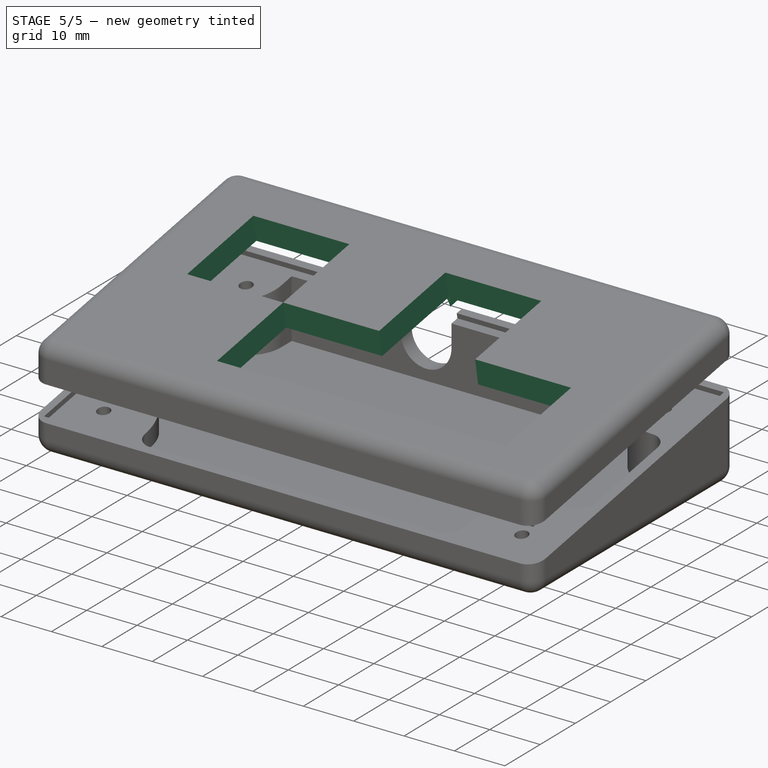
[diagram: stage 5 of 5 — iso view after this stage's code; geometry added in this stage tinted green]
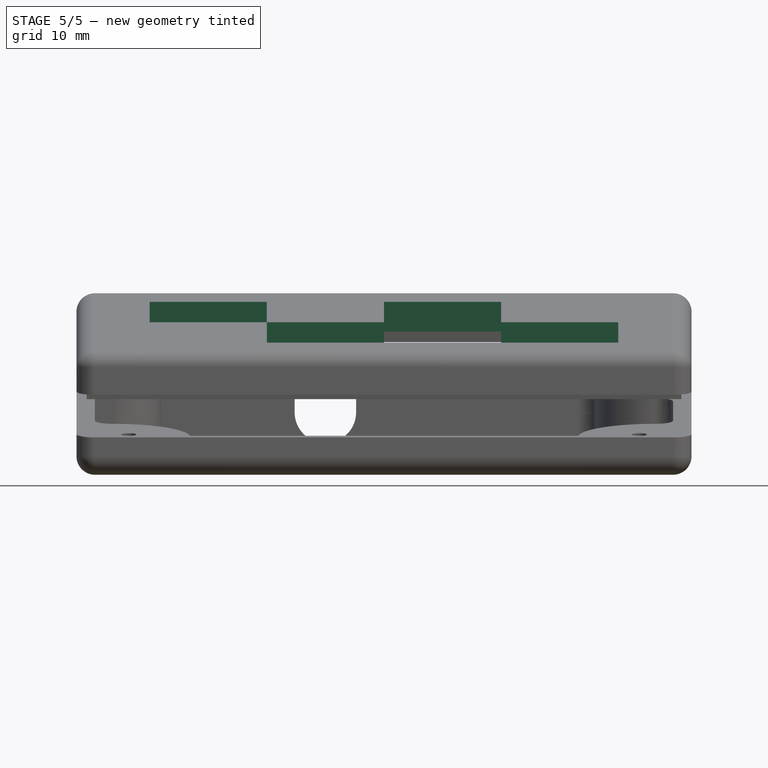
[diagram: stage 5 of 5 — front view after this stage's code; geometry added in this stage tinted green]
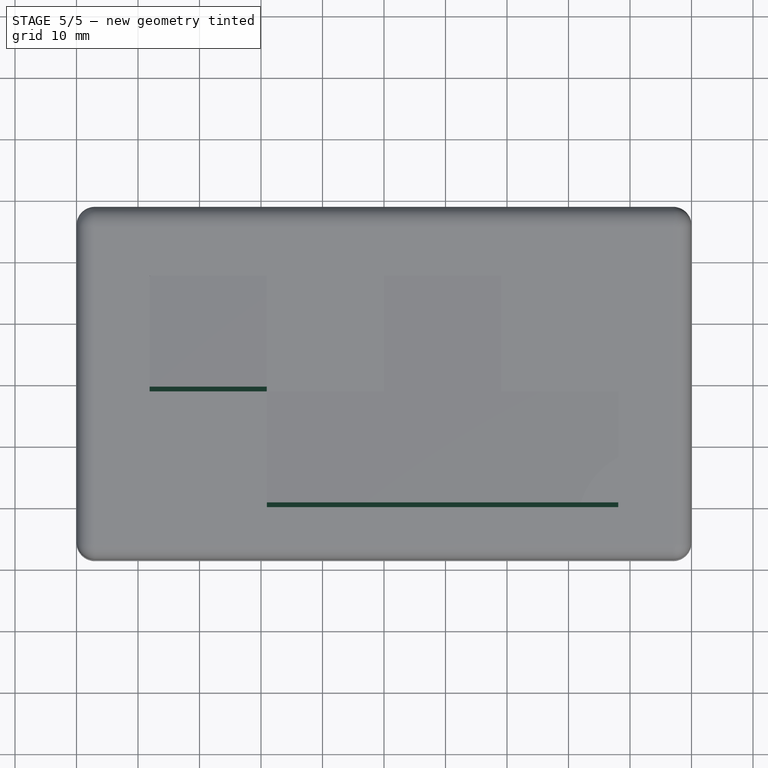
[diagram: stage 5 of 5 — top view after this stage's code; geometry added in this stage tinted green]
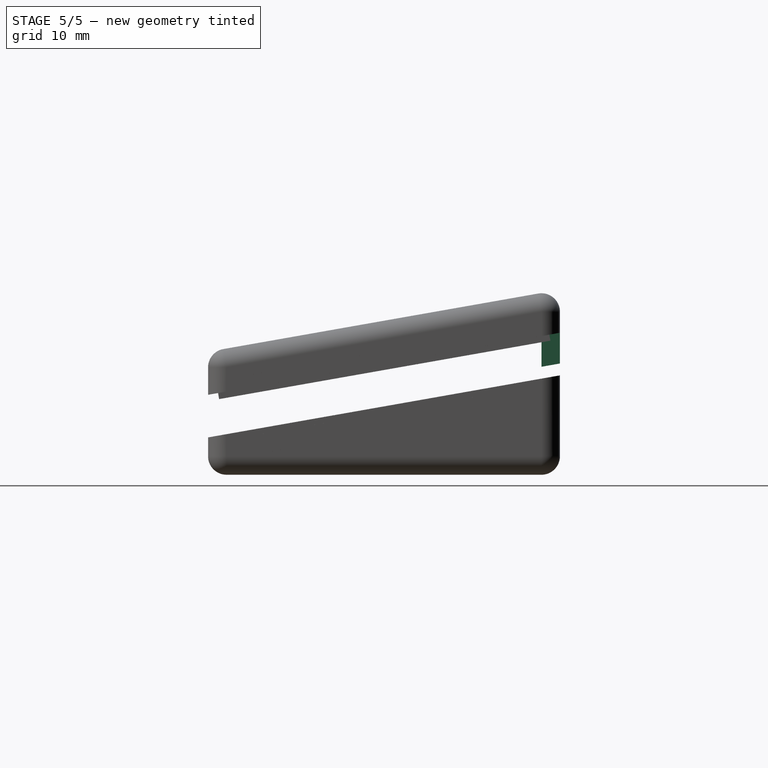
[diagram: stage 5 of 5 — right view after this stage's code; geometry added in this stage tinted green]
FEATURE [PartDesign::Pocket] Pocket002  label="TopHoles"
  BaseFeature = -> Pocket001
  Direction = (1.1e-15,0.173648,-0.984808)
  Length = 5
  Length2 = 5
  Placement = pos=(0,0,0) rot=(0.57735,0.57735,0.57735;2.0944rad)
  Profile = -> Sketch010
  ReferenceAxis = -> Sketch010 [N_Axis]
  Type = 0
  expr: Length = max(<<Params>>.WallThickness; <<Params>>.ThreadedInsertDepth + 1)
FEATURE [PartDesign::Plane] DatumPlane001  label="TopSurfaceDatumPlane"
  Length = 71.6413
  MapMode = 5
  Placement = pos=(-1e-14,-3.76972,21.3791) rot=(0.086827,0.086827,-0.992433;1.57839rad)
  ResizeMode = 0
  Support = -> [Pad005]
  Width = 85.0026
FEATURE [PartDesign::Plane] DatumPlane002  label="UnderLidDatumPlane"
  Length = 71.6413
  MapMode = 5
  Placement = pos=(-1.92e-14,-2.91994,16.5598) rot=(0.705758,0.705758,0.061746;3.26493rad)
  ResizeMode = 0
  Support = -> [Pocket001]
  Width = 85.0026
FEATURE [PartDesign::Point] DatumPoint  label="OriginDatumPoint"
  AttacherType = Attacher::AttachEnginePoint
  MapMode = 39
  Placement = pos=(-50.006,28.605,27.0877) rot=(0,0,1;0rad)
  Support = -> [Pad005]
FEATURE [PartDesign::Plane] DatumPlane003  label="TopLipDatumPlane"
  Length = 71.6413
  MapMode = 5
  Placement = pos=(-1.11e-14,-2.399,13.6054) rot=(0.705758,0.705758,0.061746;3.26493rad)
  ResizeMode = 0
  Support = -> [Pad006]
  Width = 85.0026
FEATURE [PartDesign::Line] DatumLine  label="UnderLidTopDatumLine"
  AttacherType = Attacher::AttachEngineLine
  Length = 20
  MapMode = 29
  Placement = pos=(-1.42e-14,25.7331,18.5658) rot=(-0.57735,0.57735,0.57735;4.18879rad)
  ResizeMode = 0
  Support = -> [Pocket001]
FEATURE [PartDesign::Line] DatumLine001  label="UnderLidLeftDatumLine"
  AttacherType = Attacher::AttachEngineLine
  Length = 20
  MapMode = 29
  Placement = pos=(-47.006,-2.399,13.6054) rot=(1,0,0;1.74533rad)
  ResizeMode = 0
  Support = -> [Pocket001]
FEATURE [Sketcher::SketchObject] Sketch015  label="TopBackInsertSketch"
  ExternalGeometry = -> [DatumLine,DatumLine001]
  FullyConstrained = true
  MapMode = 5
  Placement = pos=(-1.92e-14,-2.91994,16.5598) rot=(0.705758,0.705758,0.061746;3.26493rad)
  Support = -> [DatumPlane002]
  expr: .Constraints.ScrewHoleDiameter = <<Params>>.ThreadedInsertDiameter
  expr: Constraints[16] = <<Params>>.PcbDepth - 10
  expr: Constraints[1] = .Constraints.ScrewHoleDiameter
  expr: Constraints[4] = <<Params>>.WallOffset + 5 + <<Params>>.Clearance * sin(<<Params>>.Slope)
  expr: Constraints[5] = <<Params>>.WallOffset + <<Params>>.ScrewDistance
  sketch-geometry (7):
    g0: Circle CenterX=22.7188 CenterY=-41.506 CenterZ=0 NormalX=0 NormalY=0 NormalZ=1 AngleXU=0 Radius=1.6
    g1: Circle CenterX=22.7188 CenterY=41.506 CenterZ=0 NormalX=0 NormalY=0 NormalZ=1 AngleXU=0 Radius=1.6
    g2: GeomPoint X=28.5661 Y=-47.006 Z=0
    g3: Circle CenterX=-18.2812 CenterY=41.506 CenterZ=0 NormalX=0 NormalY=0 NormalZ=1 AngleXU=0 Radius=1.6
    g4: Circle CenterX=-18.2812 CenterY=-41.506 CenterZ=0 NormalX=0 NormalY=0 NormalZ=1 AngleXU=0 Radius=1.6
    g5: LineSegment StartX=-18.2812 StartY=41.506 StartZ=0 EndX=22.7188 EndY=41.506 EndZ=0
    g6: LineSegment StartX=-18.2812 StartY=-41.506 StartZ=0 EndX=22.7188 EndY=-41.506 EndZ=0
  constraints (18):
    c: Diameter(g0) = 3.2  'ScrewHoleDiameter'
    c: Diameter(g1) = 3.2
    c: PointOnObject(g2,g-4)
    c: PointOnObject(g2,g-3)
    c: DistanceX(g1,g2) = 5.8473
    c: DistanceY(g2,g0) = 5.5
    c: DistanceY(g2,g1) = 88.512
    c: Diameter(g3) = 3.2
    c: Diameter(g4) = 3.2
    c: Coincident(g5,g3)
    c: Coincident(g5,g1)
    c: Horizontal(g5)
    c: Coincident(g6,g4)
    c: Coincident(g6,g0)
    c: Horizontal(g6)
    c: Equal(g5,g6)
    c: DistanceX(g6,g6) = 41
    c: Vertical(g0,g1)
FEATURE [PartDesign::Pocket] Pocket006  label="TopBackInsertPockets"
  BaseFeature = -> Pocket002
  Direction = (-1.1e-15,-0.173648,0.984808)
  Length = 4
  Length2 = 5
  Placement = pos=(0,0,0) rot=(0.57735,0.57735,0.57735;2.0944rad)
  Profile = -> Sketch015
  ReferenceAxis = -> Sketch015 [N_Axis]
  Type = 0
  expr: Length = <<Params>>.ThreadedInsertDepth
FEATURE [PartDesign::Plane] DatumPlane004  label="BackDatumPlane"
  Length = 62.0005
  MapMode = 5
  Placement = pos=(1.27e-14,28.605,-9.5e-15) rot=(0.57735,0.57735,0.57735;4.18879rad)
  ResizeMode = 0
  Support = -> [Pad005]
  Width = 84.0065
FEATURE [Sketcher::SketchObject] Sketch018  label="TopCableHoldSketch"
  ExternalGeometry = -> [Pocket006]
  FullyConstrained = true
  MapMode = 5
  Placement = pos=(1.27e-14,28.605,-9.5e-15) rot=(0.57735,0.57735,0.57735;4.18879rad)
  Support = -> [DatumPlane004]
  expr: Constraints[19] = <<Params>>.CablePocketDistance + <<Params>>.WallThickness + <<Params>>.WallOffset - <<Params>>.FilletRadius
  sketch-geometry (7):
    g0: LineSegment StartX=20.0877 StartY=-14.285 StartZ=0 EndX=20.0877 EndY=-4.785 EndZ=0
    g1: LineSegment StartX=20.0877 StartY=-4.785 StartZ=0 EndX=15.0877 EndY=-4.785 EndZ=0
    g2: LineSegment StartX=15.0877 StartY=-14.285 StartZ=0 EndX=20.0877 EndY=-14.285 EndZ=0
    g3: ArcOfCircle CenterX=13.5264 CenterY=-9.535 CenterZ=0 NormalX=0 NormalY=0 NormalZ=1 AngleXU=0 Radius=5 StartAngle=5.02995 EndAngle=7.53642
    g4: LineSegment StartX=15.0877 StartY=-4.785 StartZ=0 EndX=15.0877 EndY=-9.535 EndZ=0
    g5: LineSegment StartX=15.0877 StartY=-9.535 StartZ=0 EndX=15.0877 EndY=-14.285 EndZ=0
    g6: LineSegment StartX=13.5264 StartY=-9.535 StartZ=0 EndX=15.0877 EndY=-9.535 EndZ=0
  constraints (20):
    c: Coincident(g0,g1)
    c: Horizontal(g1)
    c: Coincident(g2,g0)
    c: Horizontal(g2)
    c: Equal(g1,g2)
    c: DistanceX(g1,g1) = 5
    c: DistanceY(g0,g0) = 9.5
    c: Coincident(g3,g1)
    c: Coincident(g3,g2)
    c: Diameter(g3) = 10
    c: Coincident(g4,g1)
    c: Vertical(g4)
    c: Coincident(g5,g4)
    c: Coincident(g5,g2)
    c: Vertical(g5)
    c: Equal(g4,g5)
    c: Coincident(g6,g3)
    c: Coincident(g6,g4)
    c: PointOnObject(g0,g-3)
    c: DistanceY(g-3,g3) = 37.471
FEATURE [PartDesign::Pad] Pad009  label="TopCableHold"
  BaseFeature = -> Pocket006
  Direction = (1e-16,-0.984808,-0.173648)
  Length = 3
  Length2 = 10
  Placement = pos=(0,0,0) rot=(0.57735,0.57735,0.57735;2.0944rad)
  Profile = -> Sketch018
  ReferenceAxis = -> Pocket006 [Edge8]
  Type = 0
  expr: Length = <<Params>>.WallThickness
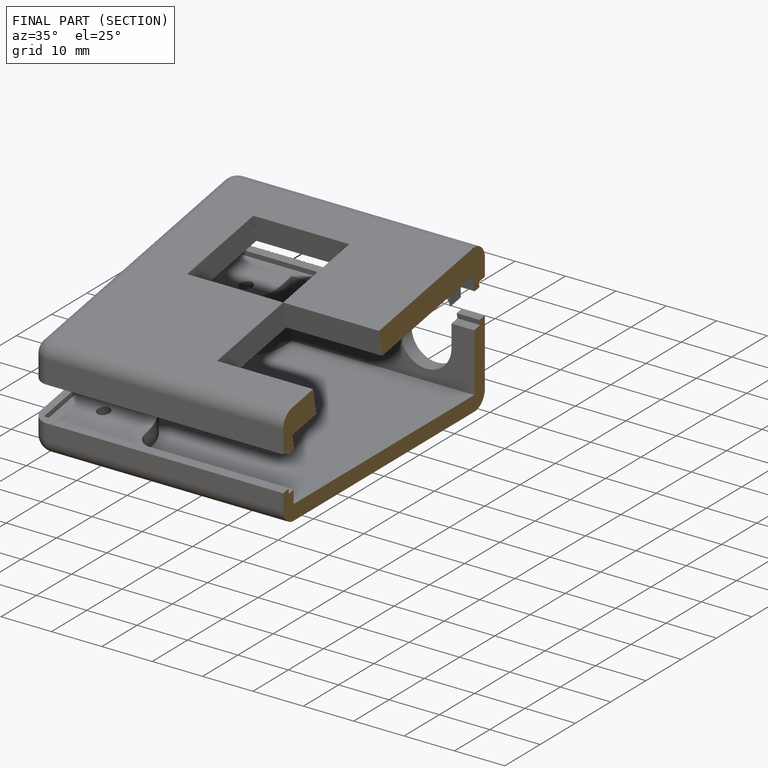
[diagram: finished part — half-section view (interior)]
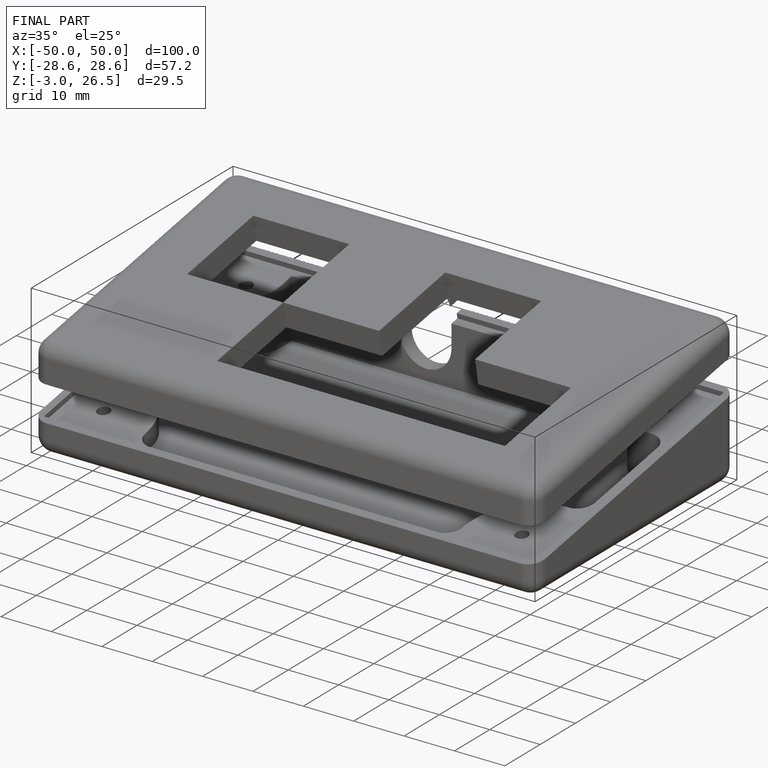
[diagram: finished part — iso view with bounding-box wireframe]
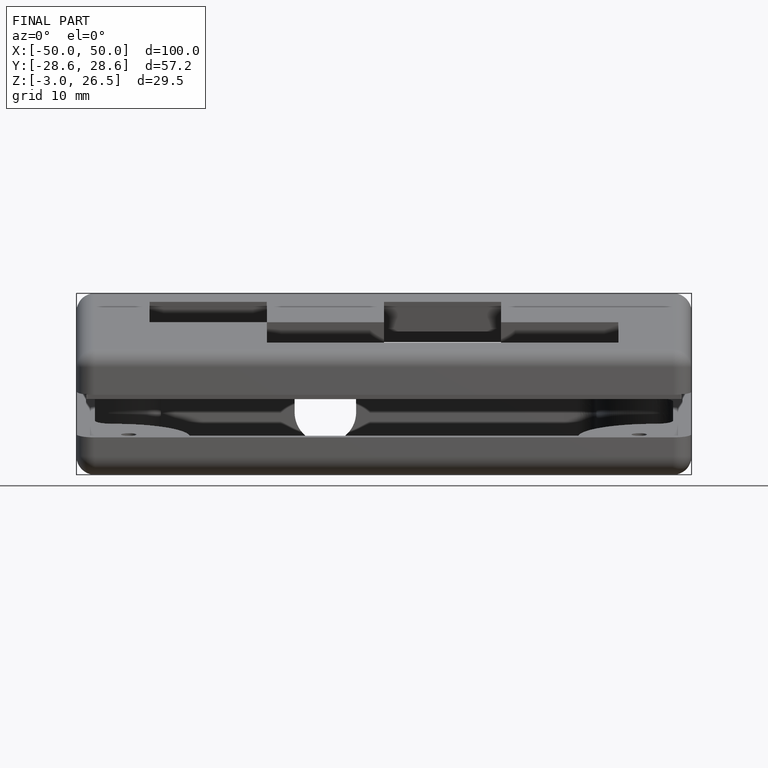
[diagram: finished part — front view with bounding-box wireframe]
